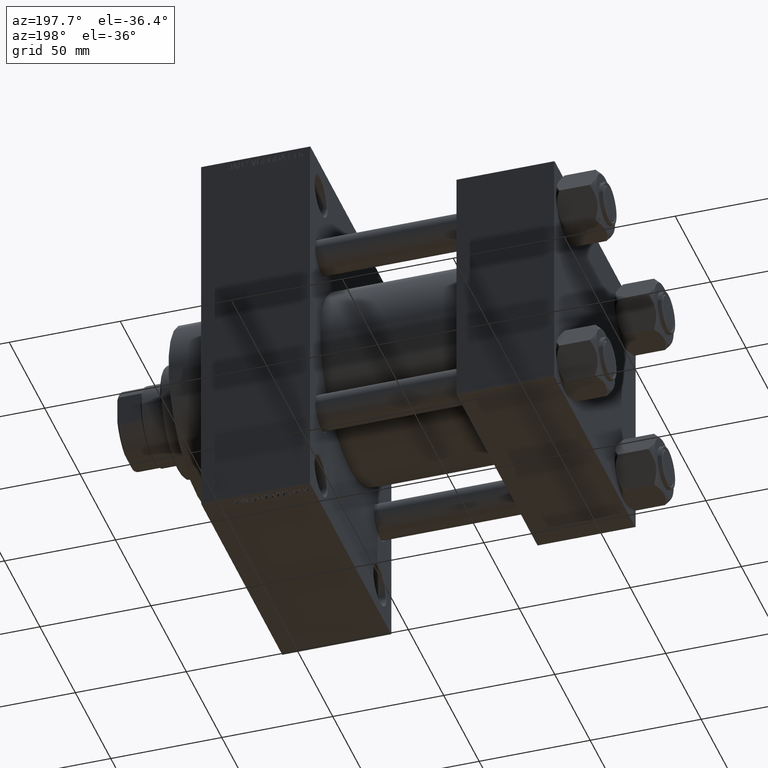
[diagram: clean part render]
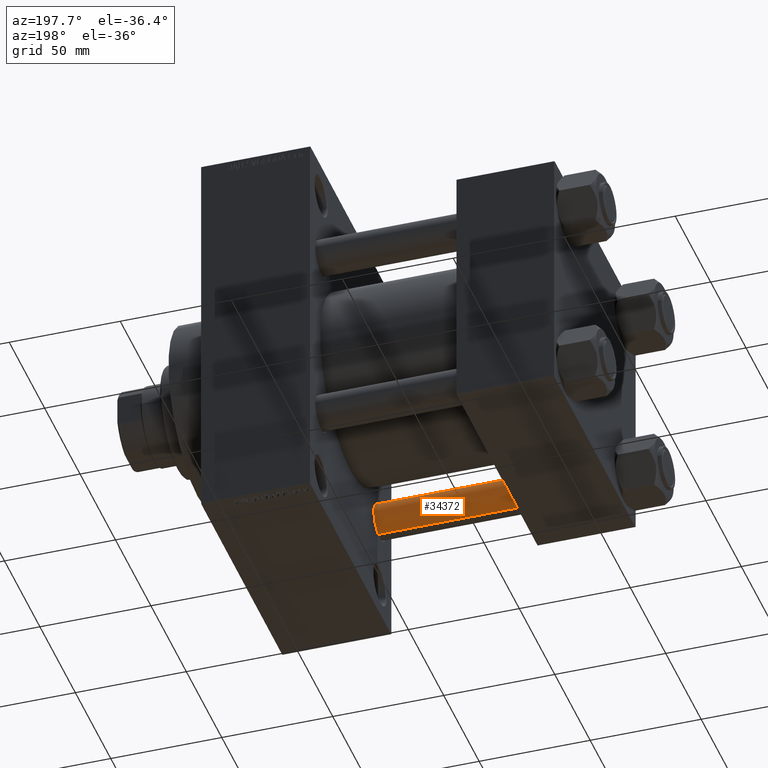
[diagram: same view with one face highlighted and labeled with its STEP entity id]
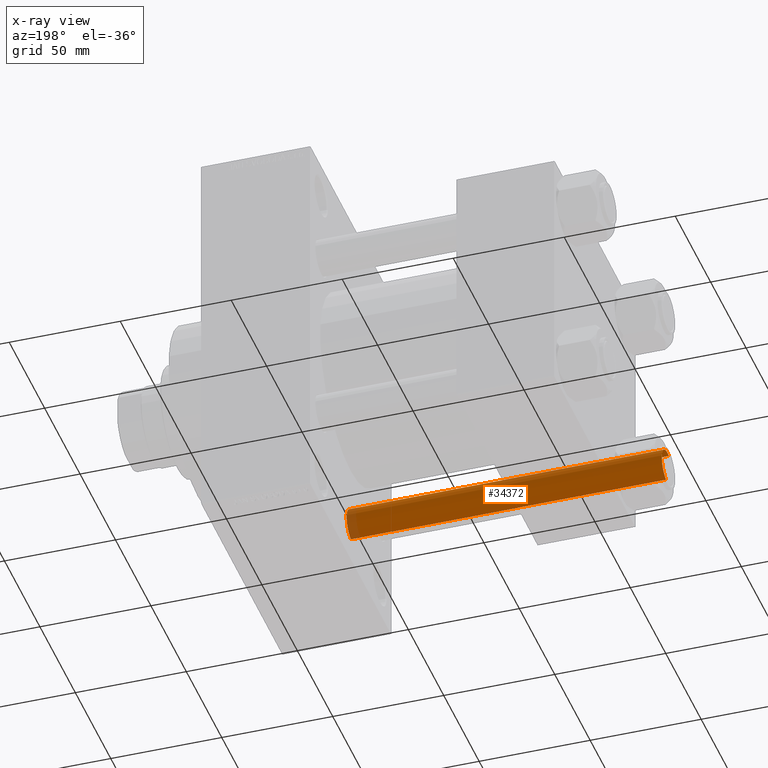
[diagram: x-ray of the same camera — body ghosted, the highlighted face saturated]
A machine part, auxiliary view. The second image highlights one B-rep face of the part: STEP entity #34372.
The next image is the same camera in x-ray: the body ghosted, the highlighted face saturated — about 4% of this face is hidden behind the body in this view.
In plain terms, the highlighted cylindrical surface (edge-blend (fillet) strip) has radius 8 mm, axis along (-1, 0, 0).
Its self-contained STEP definition (entity closure, byte-faithful):
#2375 = DIRECTION ( 'NONE',  ( 1.000000000000000000, 0.000000000000000000, 0.000000000000000000 ) ) ;
#2605 = DIRECTION ( 'NONE',  ( -0.000000000000000000, -0.000000000000000000, -1.000000000000000000 ) ) ;
#3506 = VERTEX_POINT ( 'NONE', #9610 ) ;
#4637 = AXIS2_PLACEMENT_3D ( 'NONE', #9843, #5506, #2375 ) ;
#4675 = ORIENTED_EDGE ( 'NONE', *, *, #46853, .T. ) ;
#5192 = DIRECTION ( 'NONE',  ( -0.000000000000000000, -0.000000000000000000, -1.000000000000000000 ) ) ;
#5506 = DIRECTION ( 'NONE',  ( 0.000000000000000000, 0.000000000000000000, -1.000000000000000000 ) ) ;
#6429 = AXIS2_PLACEMENT_3D ( 'NONE', #24457, #27829, #24701 ) ;
#8157 = CARTESIAN_POINT ( 'NONE',  ( 8.000000000000000000, 9.797174393178825657E-16, 0.4999999999999726885 ) ) ;
#8721 = CIRCLE ( 'NONE', #6429, 8.000000000000000000 ) ;
#9051 = LINE ( 'NONE', #20629, #21508 ) ;
#9610 = CARTESIAN_POINT ( 'NONE',  ( 8.000000000000000000, 9.797174393178825657E-16, 142.4999999999999716 ) ) ;
#9843 = CARTESIAN_POINT ( 'NONE',  ( 0.000000000000000000, 0.000000000000000000, 142.4999999999999716 ) ) ;
#13419 = ORIENTED_EDGE ( 'NONE', *, *, #34539, .F. ) ;
#16171 = CARTESIAN_POINT ( 'NONE',  ( -8.000000000000000000, 0.000000000000000000, 142.4999999999999716 ) ) ;
#16409 = CARTESIAN_POINT ( 'NONE',  ( -8.000000000000000000, 0.000000000000000000, 143.0000000000000000 ) ) ;
#20629 = CARTESIAN_POINT ( 'NONE',  ( 8.000000000000000000, 9.797174393178825657E-16, 143.0000000000000000 ) ) ;
#21508 = VECTOR ( 'NONE', #5192, 1000.000000000000000 ) ;
#22186 = EDGE_CURVE ( 'NONE', #25454, #32292, #31335, .T. ) ;
#24308 = DIRECTION ( 'NONE',  ( -1.000000000000000000, 0.000000000000000000, 0.000000000000000000 ) ) ;
#24457 = CARTESIAN_POINT ( 'NONE',  ( 0.000000000000000000, 0.000000000000000000, 0.4999999999999726885 ) ) ;
#24701 = DIRECTION ( 'NONE',  ( 1.000000000000000000, 0.000000000000000000, 0.000000000000000000 ) ) ;
#24874 = CYLINDRICAL_SURFACE ( 'NONE', #29990, 8.000000000000000000 ) ;
#25454 = VERTEX_POINT ( 'NONE', #16171 ) ;
#27829 = DIRECTION ( 'NONE',  ( -0.000000000000000000, -0.000000000000000000, 1.000000000000000000 ) ) ;
#27860 = VERTEX_POINT ( 'NONE', #8157 ) ;
#28191 = ORIENTED_EDGE ( 'NONE', *, *, #22186, .T. ) ;
#29990 = AXIS2_PLACEMENT_3D ( 'NONE', #39567, #2605, #24308 ) ;
#31335 = LINE ( 'NONE', #16409, #47423 ) ;
#31601 = CIRCLE ( 'NONE', #4637, 8.000000000000000000 ) ;
#32292 = VERTEX_POINT ( 'NONE', #35160 ) ;
#34372 = ADVANCED_FACE ( 'NONE', ( #40502 ), #24874, .T. ) ;
#34539 = EDGE_CURVE ( 'NONE', #3506, #27860, #9051, .T. ) ;
#35160 = CARTESIAN_POINT ( 'NONE',  ( -8.000000000000000000, 0.000000000000000000, 0.4999999999999726885 ) ) ;
#37305 = ORIENTED_EDGE ( 'NONE', *, *, #44184, .T. ) ;
#39567 = CARTESIAN_POINT ( 'NONE',  ( 0.000000000000000000, 0.000000000000000000, 143.0000000000000000 ) ) ;
#40502 = FACE_OUTER_BOUND ( 'NONE', #46019, .T. ) ;
#42181 = DIRECTION ( 'NONE',  ( -0.000000000000000000, -0.000000000000000000, -1.000000000000000000 ) ) ;
#44184 = EDGE_CURVE ( 'NONE', #32292, #27860, #8721, .T. ) ;
#46019 = EDGE_LOOP ( 'NONE', ( #13419, #4675, #28191, #37305 ) ) ;
#46853 = EDGE_CURVE ( 'NONE', #3506, #25454, #31601, .T. ) ;
#47423 = VECTOR ( 'NONE', #42181, 1000.000000000000000 ) ;